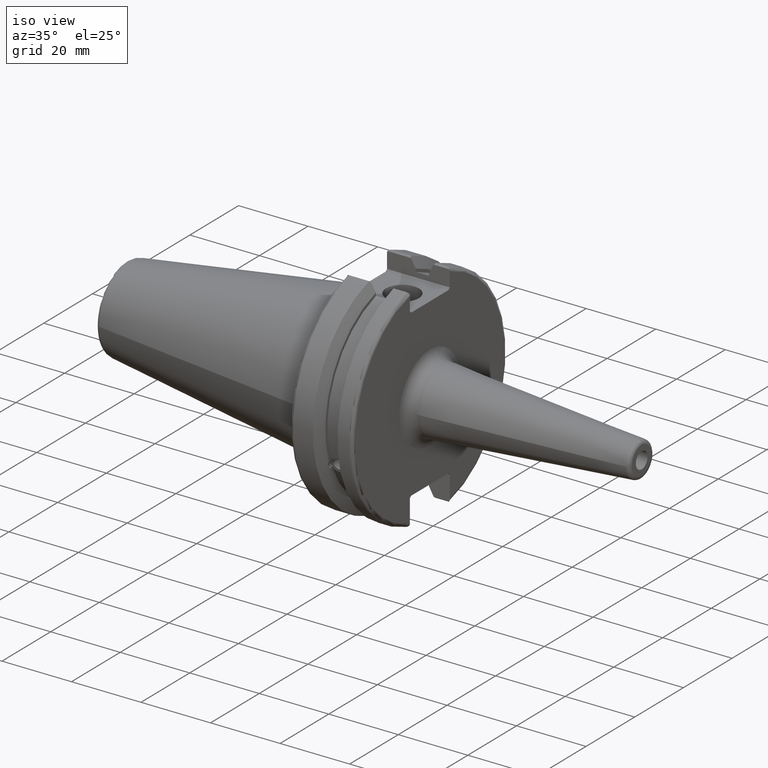
[diagram: clean part render]
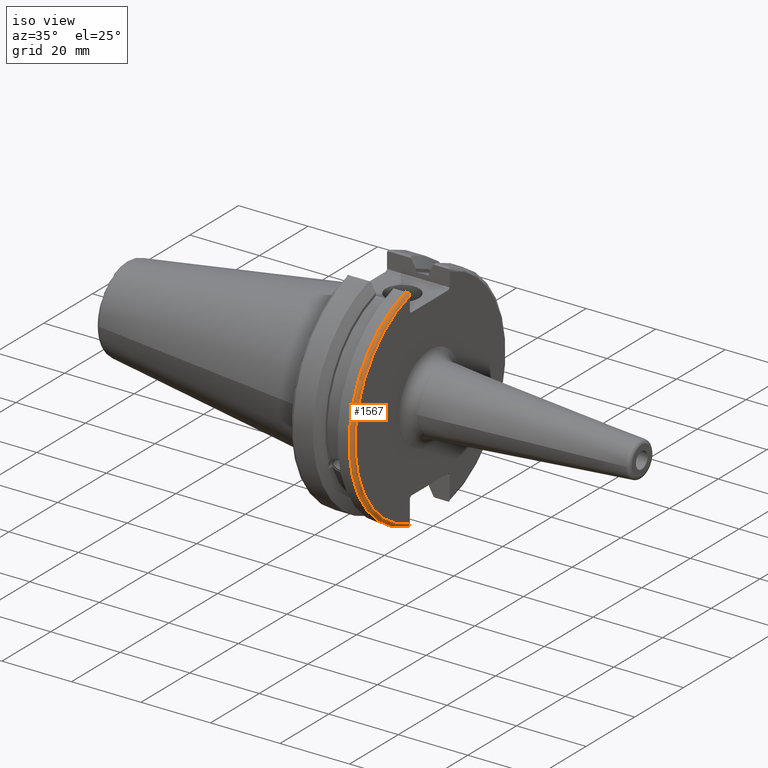
[diagram: same view with one face highlighted and labeled with its STEP entity id]
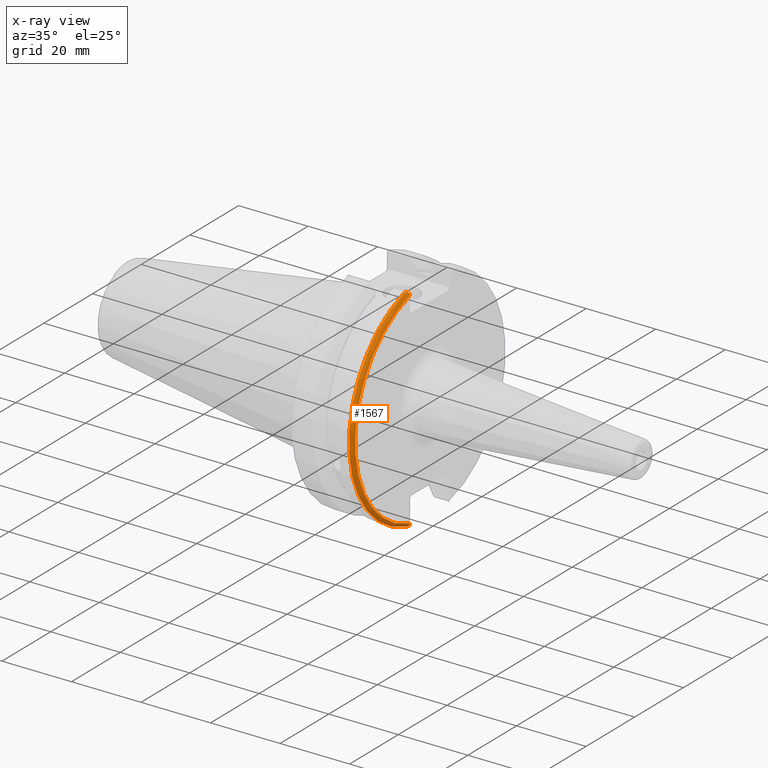
[diagram: x-ray of the same camera — body ghosted, the highlighted face saturated]
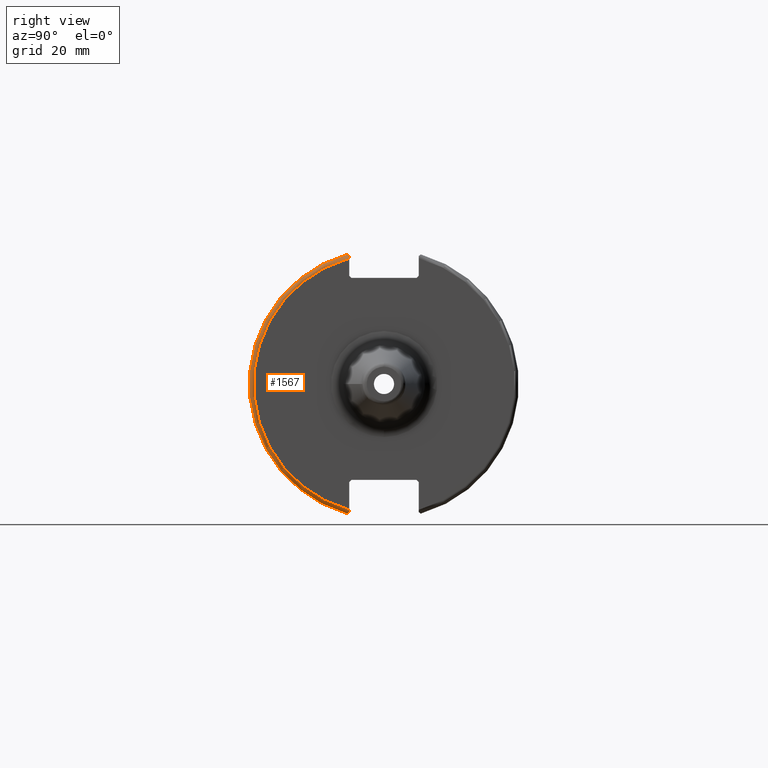
[diagram: same view with one face highlighted and labeled with its STEP entity id]
A machine part, iso view. The second image highlights one B-rep face of the part: STEP entity #1567.
The next image is the same camera in x-ray: the body ghosted, the highlighted face saturated — about 0% of this face is hidden behind the body in this view.
A second angle (right view) of the same face is appended — the face is thin or edge-on in the first view.
In plain terms, the highlighted toroidal blend (fillet) surface has major radius 30.75 mm and minor (blend) radius 1 mm.
Its self-contained STEP definition (entity closure, byte-faithful):
#73=B_SPLINE_CURVE_WITH_KNOTS('',3,(#2804,#2805,#2806,#2807,#2808,#2809),
 .UNSPECIFIED.,.F.,.F.,(4,2,4),(0.0977383630915687,0.112311108149119,0.150804350305566),
 .UNSPECIFIED.);
#74=B_SPLINE_CURVE_WITH_KNOTS('',3,(#2811,#2812,#2813,#2814,#2815,#2816),
 .UNSPECIFIED.,.F.,.F.,(4,2,4),(0.452741154494497,0.491581665024872,0.505824174364156),
 .UNSPECIFIED.);
#75=B_SPLINE_CURVE_WITH_KNOTS('',3,(#2818,#2819,#2820,#2821,#2822,#2823,
#2824,#2825),.UNSPECIFIED.,.F.,.F.,(4,2,2,4),(-0.104180282751876,-0.072978474246144,
-0.0343524753874979,0.),.UNSPECIFIED.);
#76=B_SPLINE_CURVE_WITH_KNOTS('',3,(#2828,#2829,#2830,#2831,#2832,#2833,
#2834,#2835),.UNSPECIFIED.,.F.,.F.,(4,2,2,4),(0.,0.0343524753874979,0.0729784742461441,
0.104180282751877),.UNSPECIFIED.);
#419=FACE_OUTER_BOUND('',#516,.T.);
#516=EDGE_LOOP('',(#1281,#1282,#1283,#1284,#1285,#1286));
#578=CIRCLE('',#1652,30.75);
#612=CIRCLE('',#1743,31.75);
#656=VERTEX_POINT('',#2319);
#657=VERTEX_POINT('',#2321);
#747=VERTEX_POINT('',#2803);
#748=VERTEX_POINT('',#2810);
#749=VERTEX_POINT('',#2817);
#750=VERTEX_POINT('',#2826);
#816=EDGE_CURVE('',#657,#656,#578,.T.);
#944=EDGE_CURVE('',#747,#657,#73,.T.);
#945=EDGE_CURVE('',#656,#748,#74,.T.);
#946=EDGE_CURVE('',#748,#749,#75,.T.);
#947=EDGE_CURVE('',#749,#750,#612,.T.);
#948=EDGE_CURVE('',#750,#747,#76,.T.);
#1281=ORIENTED_EDGE('',*,*,#944,.T.);
#1282=ORIENTED_EDGE('',*,*,#816,.T.);
#1283=ORIENTED_EDGE('',*,*,#945,.T.);
#1284=ORIENTED_EDGE('',*,*,#946,.T.);
#1285=ORIENTED_EDGE('',*,*,#947,.T.);
#1286=ORIENTED_EDGE('',*,*,#948,.T.);
#1518=TOROIDAL_SURFACE('',#1742,30.75,1.);
#1567=ADVANCED_FACE('',(#419),#1518,.T.);
#1652=AXIS2_PLACEMENT_3D('',#2322,#1860,#1861);
#1742=AXIS2_PLACEMENT_3D('',#2802,#2087,#2088);
#1743=AXIS2_PLACEMENT_3D('',#2827,#2089,#2090);
#1860=DIRECTION('center_axis',(-1.,0.,0.));
#1861=DIRECTION('ref_axis',(0.,-1.,1.60812264967664E-16));
#2087=DIRECTION('center_axis',(1.,0.,0.));
#2088=DIRECTION('ref_axis',(0.,0.,-1.));
#2089=DIRECTION('center_axis',(1.,0.,0.));
#2090=DIRECTION('ref_axis',(0.,-1.,1.60812264967664E-16));
#2319=CARTESIAN_POINT('',(19.05,-8.19,29.6392712461019));
#2321=CARTESIAN_POINT('',(19.05,-8.19,-29.6392712461019));
#2322=CARTESIAN_POINT('Origin',(19.05,0.,0.));
#2802=CARTESIAN_POINT('Origin',(18.05,0.,0.));
#2803=CARTESIAN_POINT('',(18.9058722749097,-8.19,-30.1755016258903));
#2804=CARTESIAN_POINT('Ctrl Pts',(18.9058722749097,-8.19,-30.1755016258903));
#2805=CARTESIAN_POINT('Ctrl Pts',(18.9324477233044,-8.19,-30.1299319366157));
#2806=CARTESIAN_POINT('Ctrl Pts',(18.9550700364447,-8.19,-30.0829389905409));
#2807=CARTESIAN_POINT('Ctrl Pts',(19.0210043632013,-8.19,-29.9188002007263));
#2808=CARTESIAN_POINT('Ctrl Pts',(19.05,-8.19,-29.76758205329));
#2809=CARTESIAN_POINT('Ctrl Pts',(19.05,-8.19,-29.6392712461019));
#2810=CARTESIAN_POINT('',(18.9058722749097,-8.19,30.1755016258903));
#2811=CARTESIAN_POINT('Ctrl Pts',(19.05,-8.19,29.6392712461019));
#2812=CARTESIAN_POINT('Ctrl Pts',(19.05,-8.19,29.7687396145364));
#2813=CARTESIAN_POINT('Ctrl Pts',(19.020485567083,-8.19,29.9212724384851));
#2814=CARTESIAN_POINT('Ctrl Pts',(18.9539643471756,-8.19,30.0852355256475));
#2815=CARTESIAN_POINT('Ctrl Pts',(18.9318163728133,-8.19,30.131014531546));
#2816=CARTESIAN_POINT('Ctrl Pts',(18.9058722749097,-8.19,30.1755016258903));
#2817=CARTESIAN_POINT('',(18.05,-8.67204822802685,30.5427254764662));
#2818=CARTESIAN_POINT('Ctrl Pts',(18.9058722749097,-8.19,30.1755016258903));
#2819=CARTESIAN_POINT('Ctrl Pts',(18.8574463042989,-8.2703682833078,30.2367261024977));
#2820=CARTESIAN_POINT('Ctrl Pts',(18.7926702662319,-8.34909446036477,30.2966996242308));
#2821=CARTESIAN_POINT('Ctrl Pts',(18.6396724190507,-8.48862804755883,30.4029961692546));
#2822=CARTESIAN_POINT('Ctrl Pts',(18.5184414294771,-8.56482138642532,30.4610401774263));
#2823=CARTESIAN_POINT('Ctrl Pts',(18.2983170433775,-8.6471881193939,30.5237870709558));
#2824=CARTESIAN_POINT('Ctrl Pts',(18.1645082512917,-8.67204822802685,30.5427254764662));
#2825=CARTESIAN_POINT('Ctrl Pts',(18.05,-8.67204822802685,30.5427254764662));
#2826=CARTESIAN_POINT('',(18.05,-8.67204822802685,-30.5427254764662));
#2827=CARTESIAN_POINT('Origin',(18.05,0.,0.));
#2828=CARTESIAN_POINT('Ctrl Pts',(18.05,-8.67204822802686,-30.5427254764662));
#2829=CARTESIAN_POINT('Ctrl Pts',(18.1645082512917,-8.67204822802686,-30.5427254764662));
#2830=CARTESIAN_POINT('Ctrl Pts',(18.2983170433775,-8.6471881193939,-30.5237870709558));
#2831=CARTESIAN_POINT('Ctrl Pts',(18.5184414294771,-8.56482138642532,-30.4610401774263));
#2832=CARTESIAN_POINT('Ctrl Pts',(18.6396724190507,-8.48862804755884,-30.4029961692546));
#2833=CARTESIAN_POINT('Ctrl Pts',(18.7926702662319,-8.34909446036477,-30.2966996242308));
#2834=CARTESIAN_POINT('Ctrl Pts',(18.8574463042989,-8.27036828330781,-30.2367261024977));
#2835=CARTESIAN_POINT('Ctrl Pts',(18.9058722749097,-8.19,-30.1755016258903));